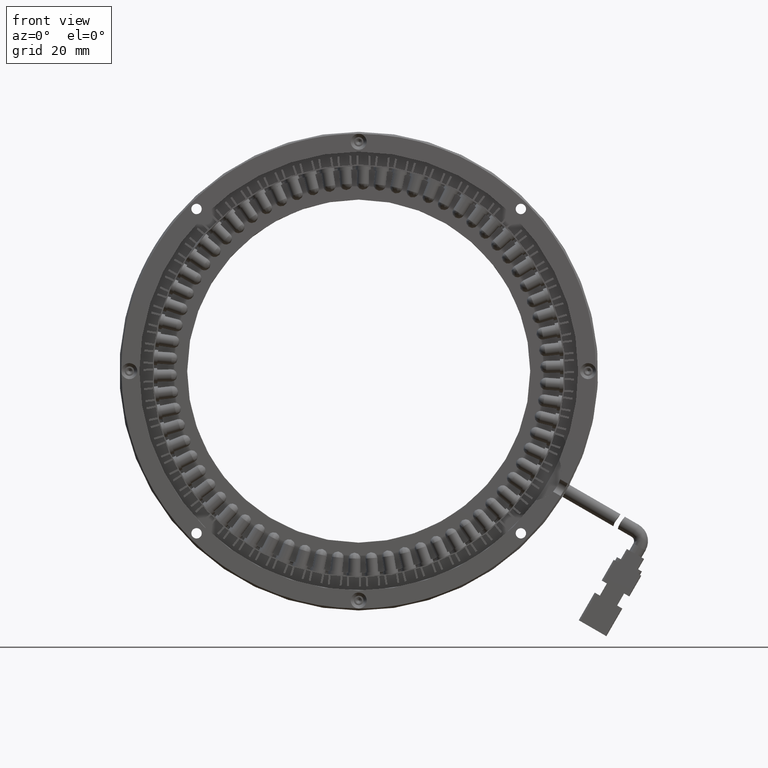
[diagram: clean part render]
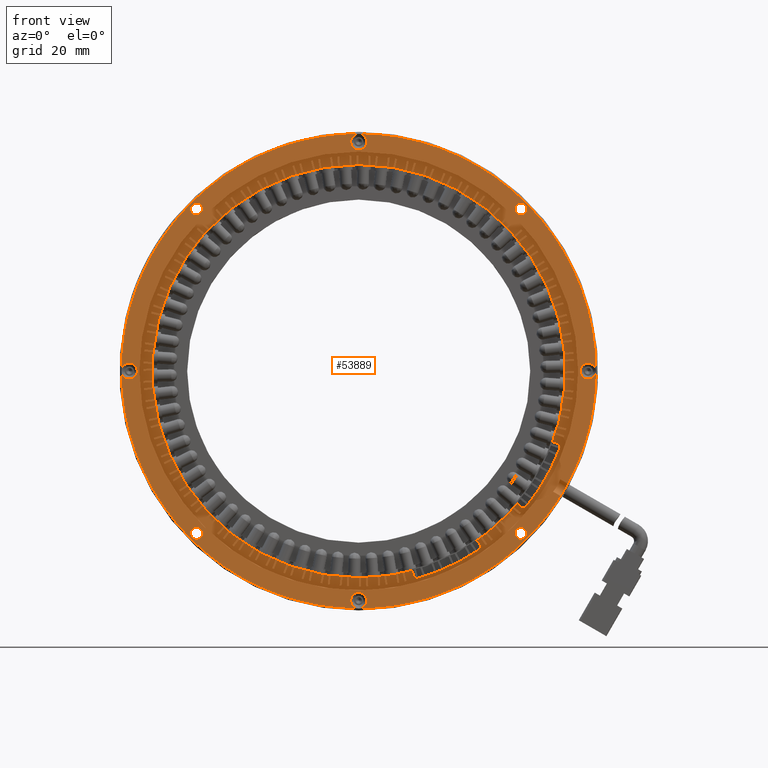
[diagram: same view with one face highlighted and labeled with its STEP entity id]
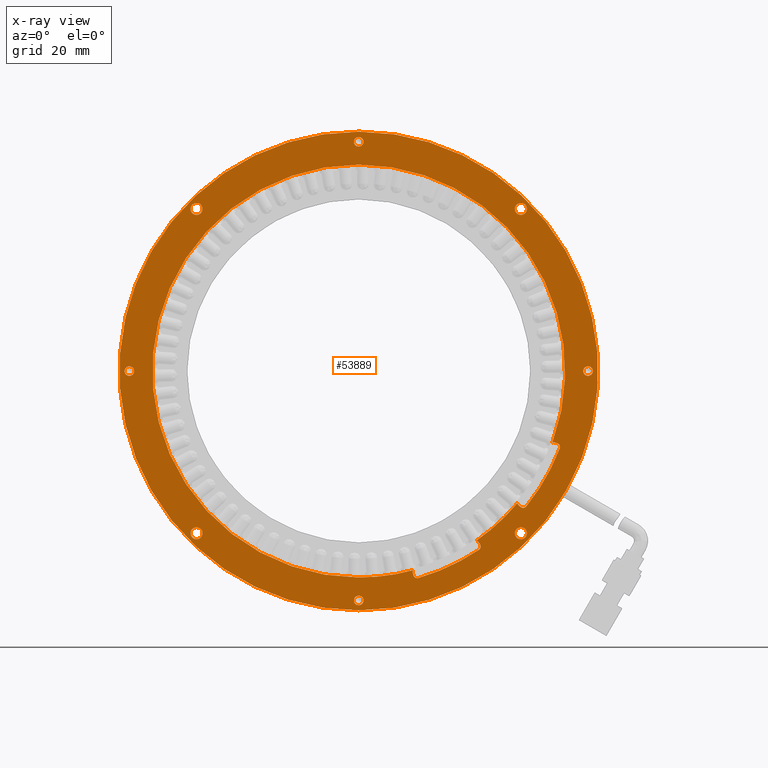
[diagram: x-ray of the same camera — body ghosted, the highlighted face saturated]
A machine part, front view. The second image highlights one B-rep face of the part: STEP entity #53889.
The next image is the same camera in x-ray: the body ghosted, the highlighted face saturated — about 0% of this face is hidden behind the body in this view.
In plain terms, the highlighted planar face has unit normal (0, 1, 0).
Its self-contained STEP definition (entity closure, byte-faithful):
#153 = CIRCLE ( 'NONE', #11416, 53.99999999999999300 ) ;
#928 = ORIENTED_EDGE ( 'NONE', *, *, #55050, .F. ) ;
#1081 = DIRECTION ( 'NONE',  ( -0.0000000000000000000, 1.000000000000000000, 0.0000000000000000000 ) ) ;
#1153 = CARTESIAN_POINT ( 'NONE',  ( 56.45624510954999000, 21.01889671361647400, 51.75000000000000700 ) ) ;
#1335 = AXIS2_PLACEMENT_3D ( 'NONE', #23403, #58045, #28369 ) ;
#1424 = EDGE_LOOP ( 'NONE', ( #60697, #57184 ) ) ;
#1634 = ORIENTED_EDGE ( 'NONE', *, *, #24513, .T. ) ;
#1654 = DIRECTION ( 'NONE',  ( -0.5735764363525099900, 0.0000000000000000000, 0.8191520442879666200 ) ) ;
#1913 = CARTESIAN_POINT ( 'NONE',  ( 113.9562451095000000, 21.01889671361712400, 1.200000000000000000 ) ) ;
#1965 = AXIS2_PLACEMENT_3D ( 'NONE', #13823, #48408, #18815 ) ;
#2033 = EDGE_CURVE ( 'NONE', #52155, #46078, #16184, .T. ) ;
#2111 = DIRECTION ( 'NONE',  ( 0.0000000000000000000, -1.000000000000000000, -0.0000000000000000000 ) ) ;
#2221 = AXIS2_PLACEMENT_3D ( 'NONE', #22442, #57065, #27432 ) ;
#2334 = ORIENTED_EDGE ( 'NONE', *, *, #33780, .T. ) ;
#2728 = AXIS2_PLACEMENT_3D ( 'NONE', #21999, #56592, #26959 ) ;
#3208 = CARTESIAN_POINT ( 'NONE',  ( 105.3451509462000100, 21.01889671361712400, -18.85828428286999900 ) ) ;
#3333 = ORIENTED_EDGE ( 'NONE', *, *, #7551, .F. ) ;
#3336 = ORIENTED_EDGE ( 'NONE', *, *, #21409, .T. ) ;
#3597 = CARTESIAN_POINT ( 'NONE',  ( 56.45624510954999000, 21.01889671361719500, 0.0000000000000000000 ) ) ;
#3816 = AXIS2_PLACEMENT_3D ( 'NONE', #30739, #1081, #35706 ) ;
#3827 = EDGE_CURVE ( 'NONE', #27186, #51906, #46864, .T. ) ;
#4248 = DIRECTION ( 'NONE',  ( 0.0000000000000000000, -1.000000000000000000, -0.0000000000000000000 ) ) ;
#4430 = VERTEX_POINT ( 'NONE', #48455 ) ;
#4439 = VERTEX_POINT ( 'NONE', #37886 ) ;
#4502 = DIRECTION ( 'NONE',  ( -1.387778780781444400E-014, 0.0000000000000000000, 1.000000000000000000 ) ) ;
#4673 = CARTESIAN_POINT ( 'NONE',  ( 56.45624510954999700, 21.01889671361719500, 60.00000000000000000 ) ) ;
#4778 = ORIENTED_EDGE ( 'NONE', *, *, #10831, .F. ) ;
#4900 = DIRECTION ( 'NONE',  ( 0.0000000000000000000, 0.0000000000000000000, 1.000000000000000000 ) ) ;
#4906 = DIRECTION ( 'NONE',  ( 0.0000000000000000000, 0.0000000000000000000, 1.000000000000000000 ) ) ;
#5212 = EDGE_CURVE ( 'NONE', #61771, #41247, #14380, .T. ) ;
#5683 = EDGE_CURVE ( 'NONE', #45473, #46001, #45975, .T. ) ;
#5809 = FACE_OUTER_BOUND ( 'NONE', #1424, .T. ) ;
#5936 = DIRECTION ( 'NONE',  ( -0.0000000000000000000, -1.000000000000000000, -0.0000000000000000000 ) ) ;
#6299 = CIRCLE ( 'NONE', #37055, 1.500000000000015100 ) ;
#6428 = CIRCLE ( 'NONE', #23426, 0.9999999999999940000 ) ;
#6652 = CIRCLE ( 'NONE', #59135, 0.9999999999999870100 ) ;
#6857 = AXIS2_PLACEMENT_3D ( 'NONE', #43291, #13734, #48329 ) ;
#7404 = FACE_BOUND ( 'NONE', #48504, .T. ) ;
#7551 = EDGE_CURVE ( 'NONE', #57176, #62173, #30301, .T. ) ;
#7580 = EDGE_CURVE ( 'NONE', #35582, #21820, #17209, .T. ) ;
#7601 = VECTOR ( 'NONE', #1654, 1000.000000000000100 ) ;
#7711 = EDGE_CURVE ( 'NONE', #12383, #44685, #14853, .T. ) ;
#7734 = LINE ( 'NONE', #29140, #34031 ) ;
#8283 = DIRECTION ( 'NONE',  ( 0.0000000000000000000, 0.0000000000000000000, 1.000000000000000000 ) ) ;
#8471 = AXIS2_PLACEMENT_3D ( 'NONE', #30304, #30224, #30144 ) ;
#8668 = DIRECTION ( 'NONE',  ( 0.0000000000000000000, 0.0000000000000000000, -1.000000000000000000 ) ) ;
#8967 = FACE_BOUND ( 'NONE', #54770, .T. ) ;
#9572 = VERTEX_POINT ( 'NONE', #54570 ) ;
#10310 = CARTESIAN_POINT ( 'NONE',  ( 70.01589320061864900, 21.01889671362000200, -50.60529560871999200 ) ) ;
#10405 = EDGE_CURVE ( 'NONE', #41426, #18902, #34605, .T. ) ;
#10487 = EDGE_CURVE ( 'NONE', #29353, #34558, #48556, .T. ) ;
#10634 = AXIS2_PLACEMENT_3D ( 'NONE', #22583, #57208, #27567 ) ;
#10831 = EDGE_CURVE ( 'NONE', #9572, #28873, #47692, .T. ) ;
#11073 = CARTESIAN_POINT ( 'NONE',  ( 97.11488502777000100, 21.01889671361723400, 40.65863991823000800 ) ) ;
#11250 = EDGE_CURVE ( 'NONE', #18902, #41426, #15938, .T. ) ;
#11345 = CARTESIAN_POINT ( 'NONE',  ( 86.50617681832380900, 21.01889671361712400, -42.91575007264151500 ) ) ;
#11416 = AXIS2_PLACEMENT_3D ( 'NONE', #28105, #62715, #33086 ) ;
#11751 = CIRCLE ( 'NONE', #28453, 53.99999999999999300 ) ;
#12216 = EDGE_LOOP ( 'NONE', ( #14276, #3333 ) ) ;
#12383 = VERTEX_POINT ( 'NONE', #51354 ) ;
#12594 = ORIENTED_EDGE ( 'NONE', *, *, #60888, .T. ) ;
#12956 = EDGE_LOOP ( 'NONE', ( #1634, #56695 ) ) ;
#12985 = CARTESIAN_POINT ( 'NONE',  ( -1.043754890453999700, 21.01889671361712400, -1.200000000000000200 ) ) ;
#13337 = CIRCLE ( 'NONE', #45374, 1.500000000000015100 ) ;
#13451 = CARTESIAN_POINT ( 'NONE',  ( 97.11488502777000100, 21.01889671361723400, 40.65863991823000800 ) ) ;
#13680 = VECTOR ( 'NONE', #24795, 1000.000000000000200 ) ;
#13734 = DIRECTION ( 'NONE',  ( -0.0000000000000000000, 1.000000000000000000, -0.0000000000000000000 ) ) ;
#13823 = CARTESIAN_POINT ( 'NONE',  ( 15.79760519132000100, 21.01889671361723400, -40.65863991823000800 ) ) ;
#14276 = ORIENTED_EDGE ( 'NONE', *, *, #39660, .F. ) ;
#14380 = CIRCLE ( 'NONE', #31374, 1.500000000000001300 ) ;
#14519 = EDGE_LOOP ( 'NONE', ( #928, #52914 ) ) ;
#14708 = EDGE_CURVE ( 'NONE', #58973, #24512, #6652, .T. ) ;
#14853 = CIRCLE ( 'NONE', #37821, 1.000000000000000900 ) ;
#14896 = EDGE_CURVE ( 'NONE', #28873, #9572, #50755, .T. ) ;
#14897 = CARTESIAN_POINT ( 'NONE',  ( 113.9562451095000000, 21.01889671361712400, 0.0000000000000000000 ) ) ;
#15252 = CARTESIAN_POINT ( 'NONE',  ( 98.47019687058852400, 21.01889671361712400, -33.92385381145729200 ) ) ;
#15769 = ORIENTED_EDGE ( 'NONE', *, *, #10487, .T. ) ;
#15938 = CIRCLE ( 'NONE', #2728, 60.00000000000000000 ) ;
#16085 = DIRECTION ( 'NONE',  ( 0.0000000000000000000, 0.0000000000000000000, 1.000000000000000000 ) ) ;
#16184 = CIRCLE ( 'NONE', #19164, 1.199999999999999700 ) ;
#16231 = CARTESIAN_POINT ( 'NONE',  ( 105.6871710895282900, 21.01889671361996300, -17.91859166208542600 ) ) ;
#16267 = ORIENTED_EDGE ( 'NONE', *, *, #29861, .T. ) ;
#16373 = CARTESIAN_POINT ( 'NONE',  ( 56.45624510954999000, 21.01889671361712400, -58.70000000000000300 ) ) ;
#16495 = CARTESIAN_POINT ( 'NONE',  ( 15.79760519132000100, 21.01889671361723400, 42.15863991823000800 ) ) ;
#16978 = CARTESIAN_POINT ( 'NONE',  ( 15.79760519132000100, 21.01889671361723400, -42.15863991823002300 ) ) ;
#17194 = DIRECTION ( 'NONE',  ( 0.0000000000000000000, 0.0000000000000000000, -1.000000000000000000 ) ) ;
#17209 = CIRCLE ( 'NONE', #1335, 1.199999999999598500 ) ;
#17442 = ORIENTED_EDGE ( 'NONE', *, *, #37554, .F. ) ;
#17494 = CIRCLE ( 'NONE', #10634, 1.199999999999999700 ) ;
#17641 = DIRECTION ( 'NONE',  ( -0.0000000000000000000, 1.000000000000000000, 0.0000000000000000000 ) ) ;
#18056 = CARTESIAN_POINT ( 'NONE',  ( -5.986352945838000900, 21.01889671362000200, -62.40000000000000600 ) ) ;
#18279 = VERTEX_POINT ( 'NONE', #61038 ) ;
#18446 = DIRECTION ( 'NONE',  ( 0.0000000000000000000, 0.0000000000000000000, 1.000000000000000000 ) ) ;
#18483 = DIRECTION ( 'NONE',  ( 0.0000000000000000000, 1.000000000000000000, 0.0000000000000000000 ) ) ;
#18565 = EDGE_CURVE ( 'NONE', #4430, #12383, #7734, .T. ) ;
#18602 = CARTESIAN_POINT ( 'NONE',  ( -1.043754890453999700, 21.01889671361712400, -4.014800644713822900E-013 ) ) ;
#18815 = DIRECTION ( 'NONE',  ( 0.0000000000000000000, 0.0000000000000000000, 1.000000000000000000 ) ) ;
#18902 = VERTEX_POINT ( 'NONE', #4673 ) ;
#19081 = FACE_BOUND ( 'NONE', #43929, .T. ) ;
#19164 = AXIS2_PLACEMENT_3D ( 'NONE', #25045, #24968, #17194 ) ;
#19171 = CARTESIAN_POINT ( 'NONE',  ( 71.41413640679510900, 21.01889671361712400, -51.88700692793715800 ) ) ;
#19521 = DIRECTION ( 'NONE',  ( 0.0000000000000000000, -1.000000000000000000, -0.0000000000000000000 ) ) ;
#19906 = DIRECTION ( 'NONE',  ( 0.0000000000000000000, 0.0000000000000000000, -1.000000000000000000 ) ) ;
#20225 = CARTESIAN_POINT ( 'NONE',  ( 56.45624510954999000, 21.01889671361647400, 0.0000000000000000000 ) ) ;
#20600 = EDGE_CURVE ( 'NONE', #61189, #55900, #6299, .T. ) ;
#20640 = ORIENTED_EDGE ( 'NONE', *, *, #25544, .F. ) ;
#20671 = CARTESIAN_POINT ( 'NONE',  ( 113.9562451095000000, 21.01889671361712400, 0.0000000000000000000 ) ) ;
#20677 = EDGE_CURVE ( 'NONE', #34558, #43587, #38011, .T. ) ;
#20834 = LINE ( 'NONE', #61012, #7601 ) ;
#20840 = AXIS2_PLACEMENT_3D ( 'NONE', #3208, #37873, #8283 ) ;
#20906 = CARTESIAN_POINT ( 'NONE',  ( 106.2510881973222600, 21.01889671362000200, -18.12384070391999900 ) ) ;
#21109 = CARTESIAN_POINT ( 'NONE',  ( 70.07451705029224300, 21.01889671361679700, -49.92599692893465100 ) ) ;
#21118 = DIRECTION ( 'NONE',  ( -0.0000000000000000000, 1.000000000000000000, 0.0000000000000000000 ) ) ;
#21409 = EDGE_CURVE ( 'NONE', #44685, #27186, #11751, .T. ) ;
#21820 = VERTEX_POINT ( 'NONE', #12985 ) ;
#21999 = CARTESIAN_POINT ( 'NONE',  ( 56.45624510954999000, 21.01889671361719500, 0.0000000000000000000 ) ) ;
#22435 = CARTESIAN_POINT ( 'NONE',  ( 56.45624510954999700, 21.01889671361647400, -51.75000000000000700 ) ) ;
#22442 = CARTESIAN_POINT ( 'NONE',  ( 56.45624510954999000, 21.01889671361712400, 57.50000000000000000 ) ) ;
#22583 = CARTESIAN_POINT ( 'NONE',  ( 56.45624510954999000, 21.01889671361712400, -57.50000000000000000 ) ) ;
#22718 = CARTESIAN_POINT ( 'NONE',  ( 85.94812115529238400, 21.01889671361679700, -42.52401377225068300 ) ) ;
#22972 = DIRECTION ( 'NONE',  ( 0.0000000000000000000, 0.0000000000000000000, 1.000000000000000000 ) ) ;
#23386 = ORIENTED_EDGE ( 'NONE', *, *, #34068, .T. ) ;
#23403 = CARTESIAN_POINT ( 'NONE',  ( -1.043754890453999700, 21.01889671361712400, -4.014800644713822900E-013 ) ) ;
#23426 = AXIS2_PLACEMENT_3D ( 'NONE', #24060, #58734, #29042 ) ;
#23504 = DIRECTION ( 'NONE',  ( 0.0000000000000000000, 0.0000000000000000000, -1.000000000000000000 ) ) ;
#23582 = CIRCLE ( 'NONE', #32462, 51.75000000000000700 ) ;
#23747 = EDGE_CURVE ( 'NONE', #18279, #28284, #48930, .T. ) ;
#24060 = CARTESIAN_POINT ( 'NONE',  ( 71.13713841981999100, 21.01889671361712400, -50.92613642926999500 ) ) ;
#24180 = AXIS2_PLACEMENT_3D ( 'NONE', #28911, #63512, #33887 ) ;
#24399 = DIRECTION ( 'NONE',  ( 0.0000000000000000000, -1.000000000000000000, -0.0000000000000000000 ) ) ;
#24512 = VERTEX_POINT ( 'NONE', #28254 ) ;
#24513 = EDGE_CURVE ( 'NONE', #21820, #35582, #55441, .T. ) ;
#24524 = AXIS2_PLACEMENT_3D ( 'NONE', #14897, #49477, #19906 ) ;
#24795 = DIRECTION ( 'NONE',  ( 0.2588190451092419200, 0.0000000000000000000, -0.9659258262872673100 ) ) ;
#24952 = CIRCLE ( 'NONE', #24180, 1.000000000000000900 ) ;
#24968 = DIRECTION ( 'NONE',  ( 0.0000000000000000000, -1.000000000000000000, 0.0000000000000000000 ) ) ;
#25045 = CARTESIAN_POINT ( 'NONE',  ( 56.45624510954999000, 21.01889671361712400, -57.50000000000000000 ) ) ;
#25080 = EDGE_CURVE ( 'NONE', #4439, #31491, #6428, .T. ) ;
#25108 = DIRECTION ( 'NONE',  ( -9.385943444898664700E-016, 0.0000000000000000000, 1.000000000000000000 ) ) ;
#25267 = CARTESIAN_POINT ( 'NONE',  ( 106.8421401850278200, 21.01889671361712400, -19.42322263271341500 ) ) ;
#25544 = EDGE_CURVE ( 'NONE', #41247, #61771, #32636, .T. ) ;
#25552 = DIRECTION ( 'NONE',  ( 0.0000000000000000000, 0.0000000000000000000, -1.000000000000000000 ) ) ;
#25748 = DIRECTION ( 'NONE',  ( -0.0000000000000000000, 1.000000000000000000, 0.0000000000000000000 ) ) ;
#25783 = CIRCLE ( 'NONE', #54470, 1.000000000000000900 ) ;
#25807 = DIRECTION ( 'NONE',  ( -0.9396926207839257900, 0.0000000000000000000, 0.3420201433311156900 ) ) ;
#26281 = ORIENTED_EDGE ( 'NONE', *, *, #25080, .T. ) ;
#26587 = CARTESIAN_POINT ( 'NONE',  ( 15.79760519132000100, 21.01889671361723400, 39.15863991823000800 ) ) ;
#26959 = DIRECTION ( 'NONE',  ( 0.0000000000000000000, 0.0000000000000000000, -1.000000000000000000 ) ) ;
#27186 = VERTEX_POINT ( 'NONE', #25267 ) ;
#27403 = ORIENTED_EDGE ( 'NONE', *, *, #30089, .T. ) ;
#27432 = DIRECTION ( 'NONE',  ( 0.0000000000000000000, 0.0000000000000000000, -1.000000000000000000 ) ) ;
#27567 = DIRECTION ( 'NONE',  ( 0.0000000000000000000, 0.0000000000000000000, -1.000000000000000000 ) ) ;
#27649 = CIRCLE ( 'NONE', #1965, 1.500000000000015100 ) ;
#28105 = CARTESIAN_POINT ( 'NONE',  ( 56.45624510954999000, 21.01889671361712400, 0.0000000000000000000 ) ) ;
#28254 = CARTESIAN_POINT ( 'NONE',  ( 86.85038465601374500, 21.01889671361712400, -43.40732980994152300 ) ) ;
#28284 = VERTEX_POINT ( 'NONE', #1913 ) ;
#28369 = DIRECTION ( 'NONE',  ( 0.0000000000000000000, 0.0000000000000000000, -1.000000000000000000 ) ) ;
#28453 = AXIS2_PLACEMENT_3D ( 'NONE', #35580, #5936, #40561 ) ;
#28477 = ORIENTED_EDGE ( 'NONE', *, *, #50566, .F. ) ;
#28638 = AXIS2_PLACEMENT_3D ( 'NONE', #18056, #52633, #22972 ) ;
#28873 = VERTEX_POINT ( 'NONE', #41636 ) ;
#28911 = CARTESIAN_POINT ( 'NONE',  ( 70.98181902692999800, 21.01889671361712400, -50.34647656362000100 ) ) ;
#29042 = DIRECTION ( 'NONE',  ( 1.387778780781454000E-014, 0.0000000000000000000, 1.000000000000000000 ) ) ;
#29140 = CARTESIAN_POINT ( 'NONE',  ( 96.58966367892394100, 21.01889671362000200, -33.67593671947000200 ) ) ;
#29187 = AXIS2_PLACEMENT_3D ( 'NONE', #33944, #4248, #38930 ) ;
#29204 = DIRECTION ( 'NONE',  ( 0.0000000000000000000, 1.000000000000000000, 0.0000000000000000000 ) ) ;
#29353 = VERTEX_POINT ( 'NONE', #11345 ) ;
#29500 = ORIENTED_EDGE ( 'NONE', *, *, #20677, .T. ) ;
#29698 = AXIS2_PLACEMENT_3D ( 'NONE', #13451, #48052, #18446 ) ;
#29861 = EDGE_CURVE ( 'NONE', #42219, #32616, #23582, .T. ) ;
#30015 = VERTEX_POINT ( 'NONE', #16495 ) ;
#30089 = EDGE_CURVE ( 'NONE', #62178, #40514, #32039, .T. ) ;
#30144 = DIRECTION ( 'NONE',  ( 0.0000000000000000000, 0.0000000000000000000, 1.000000000000000000 ) ) ;
#30224 = DIRECTION ( 'NONE',  ( 0.0000000000000000000, -1.000000000000000000, -0.0000000000000000000 ) ) ;
#30301 = CIRCLE ( 'NONE', #52386, 1.500000000000015100 ) ;
#30304 = CARTESIAN_POINT ( 'NONE',  ( 105.9090680539999700, 21.01889671361712400, -19.06353332470000000 ) ) ;
#30739 = CARTESIAN_POINT ( 'NONE',  ( 15.79760519132000100, 21.01889671361723400, 40.65863991823000800 ) ) ;
#31374 = AXIS2_PLACEMENT_3D ( 'NONE', #11073, #45707, #16085 ) ;
#31437 = CARTESIAN_POINT ( 'NONE',  ( -1.043754890453999500, 21.01889671361712400, 1.199999999999197000 ) ) ;
#31445 = EDGE_LOOP ( 'NONE', ( #4778, #50429 ) ) ;
#31491 = VERTEX_POINT ( 'NONE', #19171 ) ;
#31757 = CARTESIAN_POINT ( 'NONE',  ( 56.45624510954999000, 21.01889671361647400, 0.0000000000000000000 ) ) ;
#32039 = CIRCLE ( 'NONE', #57787, 51.75000000000000700 ) ;
#32156 = FACE_BOUND ( 'NONE', #34562, .T. ) ;
#32462 = AXIS2_PLACEMENT_3D ( 'NONE', #20225, #54767, #25108 ) ;
#32616 = VERTEX_POINT ( 'NONE', #1153 ) ;
#32636 = CIRCLE ( 'NONE', #29698, 1.500000000000001300 ) ;
#32666 = CARTESIAN_POINT ( 'NONE',  ( 86.58925124384661800, 21.01889671361712400, -44.81073466603146500 ) ) ;
#33086 = DIRECTION ( 'NONE',  ( 0.0000000000000000000, 0.0000000000000000000, 1.000000000000000000 ) ) ;
#33670 = AXIS2_PLACEMENT_3D ( 'NONE', #20671, #55214, #25552 ) ;
#33696 = FACE_BOUND ( 'NONE', #12956, .T. ) ;
#33780 = EDGE_CURVE ( 'NONE', #61217, #4439, #51608, .T. ) ;
#33887 = DIRECTION ( 'NONE',  ( 0.0000000000000000000, 0.0000000000000000000, 1.000000000000000000 ) ) ;
#33944 = CARTESIAN_POINT ( 'NONE',  ( 85.68702477404001200, 21.01889671361712400, -43.48932650898999000 ) ) ;
#34031 = VECTOR ( 'NONE', #63754, 1000.000000000000200 ) ;
#34068 = EDGE_CURVE ( 'NONE', #46078, #52155, #17494, .T. ) ;
#34209 = DIRECTION ( 'NONE',  ( 0.0000000000000000000, -1.000000000000000000, -0.0000000000000000000 ) ) ;
#34558 = VERTEX_POINT ( 'NONE', #22718 ) ;
#34562 = EDGE_LOOP ( 'NONE', ( #20640, #60887 ) ) ;
#34585 = DIRECTION ( 'NONE',  ( 0.0000000000000000000, -1.000000000000000000, -0.0000000000000000000 ) ) ;
#34590 = DIRECTION ( 'NONE',  ( 0.0000000000000000000, -1.000000000000000000, -0.0000000000000000000 ) ) ;
#34605 = CIRCLE ( 'NONE', #53692, 60.00000000000000000 ) ;
#35187 = AXIS2_PLACEMENT_3D ( 'NONE', #49095, #19521, #54089 ) ;
#35580 = CARTESIAN_POINT ( 'NONE',  ( 56.45624510954999000, 21.01889671361712400, 0.0000000000000000000 ) ) ;
#35582 = VERTEX_POINT ( 'NONE', #31437 ) ;
#35706 = DIRECTION ( 'NONE',  ( 0.0000000000000000000, 0.0000000000000000000, 1.000000000000000000 ) ) ;
#35980 = VECTOR ( 'NONE', #25807, 1000.000000000000100 ) ;
#36233 = AXIS2_PLACEMENT_3D ( 'NONE', #18602, #53190, #23504 ) ;
#36733 = DIRECTION ( 'NONE',  ( 0.0000000000000000000, 0.0000000000000000000, 1.000000000000000000 ) ) ;
#37055 = AXIS2_PLACEMENT_3D ( 'NONE', #58899, #29204, #63809 ) ;
#37319 = CARTESIAN_POINT ( 'NONE',  ( 15.79760519132000100, 21.01889671361723400, -39.15863991822999400 ) ) ;
#37554 = EDGE_CURVE ( 'NONE', #30015, #60568, #62253, .T. ) ;
#37821 = AXIS2_PLACEMENT_3D ( 'NONE', #63846, #34209, #4502 ) ;
#37840 = EDGE_CURVE ( 'NONE', #31491, #58973, #153, .T. ) ;
#37873 = DIRECTION ( 'NONE',  ( 0.0000000000000000000, -1.000000000000000000, -0.0000000000000000000 ) ) ;
#37886 = CARTESIAN_POINT ( 'NONE',  ( 70.17121259352165900, 21.01889671361712400, -51.18495547437836300 ) ) ;
#38011 = CIRCLE ( 'NONE', #56984, 51.75000000000000700 ) ;
#38271 = DIRECTION ( 'NONE',  ( -0.0000000000000000000, 1.000000000000000000, -0.0000000000000000000 ) ) ;
#38930 = DIRECTION ( 'NONE',  ( 1.387778780781454000E-014, 0.0000000000000000000, 1.000000000000000000 ) ) ;
#39356 = EDGE_CURVE ( 'NONE', #24512, #29353, #20834, .T. ) ;
#39390 = AXIS2_PLACEMENT_3D ( 'NONE', #64236, #34585, #4900 ) ;
#39660 = EDGE_CURVE ( 'NONE', #62173, #57176, #27649, .T. ) ;
#40454 = CARTESIAN_POINT ( 'NONE',  ( 56.45624510954999000, 21.01889671361719500, -60.00000000000000000 ) ) ;
#40514 = VERTEX_POINT ( 'NONE', #21109 ) ;
#40561 = DIRECTION ( 'NONE',  ( 2.698458740408366800E-015, 0.0000000000000000000, 1.000000000000000000 ) ) ;
#40806 = CARTESIAN_POINT ( 'NONE',  ( 97.11488502777000100, 21.01889671361723400, -39.15863991822999400 ) ) ;
#41203 = CARTESIAN_POINT ( 'NONE',  ( 96.24805580926177100, 21.01889671361679700, -33.08586255847507800 ) ) ;
#41204 = CIRCLE ( 'NONE', #45238, 1.500000000000001300 ) ;
#41247 = VERTEX_POINT ( 'NONE', #54140 ) ;
#41426 = VERTEX_POINT ( 'NONE', #40454 ) ;
#41558 = CARTESIAN_POINT ( 'NONE',  ( 56.45624510954999000, 21.01889671361712400, -56.30000000000000400 ) ) ;
#41636 = CARTESIAN_POINT ( 'NONE',  ( 56.45624510954999000, 21.01889671361712400, 58.70000000000001700 ) ) ;
#41763 = ORIENTED_EDGE ( 'NONE', *, *, #49518, .T. ) ;
#41960 = CIRCLE ( 'NONE', #20840, 0.9999999999999940000 ) ;
#42219 = VERTEX_POINT ( 'NONE', #52495 ) ;
#43291 = CARTESIAN_POINT ( 'NONE',  ( 56.45624510954999000, 21.01889671361712400, 57.50000000000000000 ) ) ;
#43587 = VERTEX_POINT ( 'NONE', #41203 ) ;
#43672 = CARTESIAN_POINT ( 'NONE',  ( 97.11488502777000100, 21.01889671361723400, 39.15863991823000800 ) ) ;
#43929 = EDGE_LOOP ( 'NONE', ( #60151, #63640, #50047, #15769, #29500, #47977, #47037, #49252, #3336, #46342, #41763, #56808, #53689, #16267, #46836, #27403, #28477, #2334, #26281 ) ) ;
#44509 = ORIENTED_EDGE ( 'NONE', *, *, #47541, .F. ) ;
#44685 = VERTEX_POINT ( 'NONE', #15252 ) ;
#45238 = AXIS2_PLACEMENT_3D ( 'NONE', #47259, #17641, #52241 ) ;
#45351 = FACE_BOUND ( 'NONE', #47823, .T. ) ;
#45374 = AXIS2_PLACEMENT_3D ( 'NONE', #48090, #18483, #53067 ) ;
#45473 = VERTEX_POINT ( 'NONE', #16231 ) ;
#45707 = DIRECTION ( 'NONE',  ( 0.0000000000000000000, 1.000000000000000000, 0.0000000000000000000 ) ) ;
#45975 = CIRCLE ( 'NONE', #35187, 0.9999999999999940000 ) ;
#46001 = VERTEX_POINT ( 'NONE', #60710 ) ;
#46078 = VERTEX_POINT ( 'NONE', #16373 ) ;
#46342 = ORIENTED_EDGE ( 'NONE', *, *, #3827, .T. ) ;
#46836 = ORIENTED_EDGE ( 'NONE', *, *, #60407, .T. ) ;
#46864 = CIRCLE ( 'NONE', #8471, 1.000000000000000900 ) ;
#46919 = FACE_BOUND ( 'NONE', #31445, .T. ) ;
#47037 = ORIENTED_EDGE ( 'NONE', *, *, #18565, .T. ) ;
#47259 = CARTESIAN_POINT ( 'NONE',  ( 15.79760519132000100, 21.01889671361723400, 40.65863991823000800 ) ) ;
#47461 = ORIENTED_EDGE ( 'NONE', *, *, #2033, .T. ) ;
#47541 = EDGE_CURVE ( 'NONE', #60568, #30015, #41204, .T. ) ;
#47569 = EDGE_CURVE ( 'NONE', #46001, #42219, #41960, .T. ) ;
#47692 = CIRCLE ( 'NONE', #2221, 1.200000000000013500 ) ;
#47705 = CARTESIAN_POINT ( 'NONE',  ( 70.01589320062980400, 21.01889671361712400, -50.60529560872557700 ) ) ;
#47823 = EDGE_LOOP ( 'NONE', ( #17442, #44509 ) ) ;
#47977 = ORIENTED_EDGE ( 'NONE', *, *, #54749, .F. ) ;
#48052 = DIRECTION ( 'NONE',  ( 0.0000000000000000000, 1.000000000000000000, 0.0000000000000000000 ) ) ;
#48090 = CARTESIAN_POINT ( 'NONE',  ( 97.11488502777000100, 21.01889671361723400, -40.65863991823000800 ) ) ;
#48329 = DIRECTION ( 'NONE',  ( 0.0000000000000000000, 0.0000000000000000000, -1.000000000000000000 ) ) ;
#48408 = DIRECTION ( 'NONE',  ( -0.0000000000000000000, 1.000000000000000000, 0.0000000000000000000 ) ) ;
#48455 = CARTESIAN_POINT ( 'NONE',  ( 96.58966367894359500, 21.01889671361712400, -33.67593671947526000 ) ) ;
#48504 = EDGE_LOOP ( 'NONE', ( #58197, #12594 ) ) ;
#48556 = CIRCLE ( 'NONE', #29187, 0.9999999999999940000 ) ;
#48930 = CIRCLE ( 'NONE', #33670, 1.200000000000000000 ) ;
#49095 = CARTESIAN_POINT ( 'NONE',  ( 105.3451509462000100, 21.01889671361712400, -18.85828428286999900 ) ) ;
#49169 = LINE ( 'NONE', #20906, #35980 ) ;
#49252 = ORIENTED_EDGE ( 'NONE', *, *, #7711, .T. ) ;
#49477 = DIRECTION ( 'NONE',  ( 0.0000000000000000000, -1.000000000000000000, 0.0000000000000000000 ) ) ;
#49518 = EDGE_CURVE ( 'NONE', #51906, #45473, #49169, .T. ) ;
#50047 = ORIENTED_EDGE ( 'NONE', *, *, #39356, .T. ) ;
#50429 = ORIENTED_EDGE ( 'NONE', *, *, #14896, .F. ) ;
#50566 = EDGE_CURVE ( 'NONE', #61217, #40514, #24952, .T. ) ;
#50721 = CARTESIAN_POINT ( 'NONE',  ( 97.23245128862998900, 21.01889671361712400, -32.90989227635000700 ) ) ;
#50755 = CIRCLE ( 'NONE', #6857, 1.200000000000013500 ) ;
#51354 = CARTESIAN_POINT ( 'NONE',  ( 97.04937311718184400, 21.01889671361712400, -34.06167873954634500 ) ) ;
#51608 = LINE ( 'NONE', #10310, #13680 ) ;
#51906 = VERTEX_POINT ( 'NONE', #58759 ) ;
#52051 = CARTESIAN_POINT ( 'NONE',  ( 97.11488502777000100, 21.01889671361723400, -42.15863991823002300 ) ) ;
#52155 = VERTEX_POINT ( 'NONE', #41558 ) ;
#52241 = DIRECTION ( 'NONE',  ( 0.0000000000000000000, 0.0000000000000000000, 1.000000000000000000 ) ) ;
#52386 = AXIS2_PLACEMENT_3D ( 'NONE', #55408, #25748, #60409 ) ;
#52495 = CARTESIAN_POINT ( 'NONE',  ( 105.0053479411685400, 21.01889671361679700, -17.91778764928664500 ) ) ;
#52622 = CIRCLE ( 'NONE', #24524, 1.200000000000000000 ) ;
#52633 = DIRECTION ( 'NONE',  ( 0.0000000000000000000, 1.000000000000000000, 0.0000000000000000000 ) ) ;
#52914 = ORIENTED_EDGE ( 'NONE', *, *, #20600, .F. ) ;
#53067 = DIRECTION ( 'NONE',  ( 0.0000000000000000000, 0.0000000000000000000, 1.000000000000000000 ) ) ;
#53190 = DIRECTION ( 'NONE',  ( 0.0000000000000000000, -1.000000000000000000, 0.0000000000000000000 ) ) ;
#53689 = ORIENTED_EDGE ( 'NONE', *, *, #47569, .T. ) ;
#53692 = AXIS2_PLACEMENT_3D ( 'NONE', #3597, #38271, #8668 ) ;
#53889 = ADVANCED_FACE ( 'NONE', ( #7404, #46919, #33696, #8967, #58523, #60099, #45351, #32156, #19081, #5809 ), #57381, .T. ) ;
#54074 = CARTESIAN_POINT ( 'NONE',  ( 86.03123261172997600, 21.01889671361712400, -43.98090624628999700 ) ) ;
#54089 = DIRECTION ( 'NONE',  ( -8.326672684688724500E-014, 0.0000000000000000000, 1.000000000000000000 ) ) ;
#54140 = CARTESIAN_POINT ( 'NONE',  ( 97.11488502777000100, 21.01889671361723400, 42.15863991823000800 ) ) ;
#54470 = AXIS2_PLACEMENT_3D ( 'NONE', #50721, #21118, #55682 ) ;
#54570 = CARTESIAN_POINT ( 'NONE',  ( 56.45624510954999000, 21.01889671361712400, 56.29999999999999000 ) ) ;
#54749 = EDGE_CURVE ( 'NONE', #4430, #43587, #25783, .T. ) ;
#54767 = DIRECTION ( 'NONE',  ( 0.0000000000000000000, -1.000000000000000000, -0.0000000000000000000 ) ) ;
#54770 = EDGE_LOOP ( 'NONE', ( #23386, #47461 ) ) ;
#55050 = EDGE_CURVE ( 'NONE', #55900, #61189, #13337, .T. ) ;
#55214 = DIRECTION ( 'NONE',  ( 0.0000000000000000000, -1.000000000000000000, 0.0000000000000000000 ) ) ;
#55408 = CARTESIAN_POINT ( 'NONE',  ( 15.79760519132000100, 21.01889671361723400, -40.65863991823000800 ) ) ;
#55441 = CIRCLE ( 'NONE', #36233, 1.199999999999598500 ) ;
#55682 = DIRECTION ( 'NONE',  ( 0.0000000000000000000, 0.0000000000000000000, 1.000000000000000000 ) ) ;
#55900 = VERTEX_POINT ( 'NONE', #40806 ) ;
#56592 = DIRECTION ( 'NONE',  ( -0.0000000000000000000, 1.000000000000000000, -0.0000000000000000000 ) ) ;
#56640 = CIRCLE ( 'NONE', #39390, 51.75000000000000700 ) ;
#56695 = ORIENTED_EDGE ( 'NONE', *, *, #7580, .T. ) ;
#56808 = ORIENTED_EDGE ( 'NONE', *, *, #5683, .T. ) ;
#56984 = AXIS2_PLACEMENT_3D ( 'NONE', #64238, #34590, #4906 ) ;
#57065 = DIRECTION ( 'NONE',  ( -0.0000000000000000000, 1.000000000000000000, -0.0000000000000000000 ) ) ;
#57176 = VERTEX_POINT ( 'NONE', #16978 ) ;
#57184 = ORIENTED_EDGE ( 'NONE', *, *, #11250, .T. ) ;
#57208 = DIRECTION ( 'NONE',  ( 0.0000000000000000000, -1.000000000000000000, 0.0000000000000000000 ) ) ;
#57381 = PLANE ( 'NONE',  #28638 ) ;
#57787 = AXIS2_PLACEMENT_3D ( 'NONE', #31757, #2111, #36733 ) ;
#58045 = DIRECTION ( 'NONE',  ( 0.0000000000000000000, -1.000000000000000000, 0.0000000000000000000 ) ) ;
#58197 = ORIENTED_EDGE ( 'NONE', *, *, #23747, .T. ) ;
#58523 = FACE_BOUND ( 'NONE', #14519, .T. ) ;
#58734 = DIRECTION ( 'NONE',  ( 0.0000000000000000000, -1.000000000000000000, -0.0000000000000000000 ) ) ;
#58759 = CARTESIAN_POINT ( 'NONE',  ( 106.2510881973325600, 21.01889671361712400, -18.12384070392067100 ) ) ;
#58899 = CARTESIAN_POINT ( 'NONE',  ( 97.11488502777000100, 21.01889671361723400, -40.65863991823000800 ) ) ;
#58973 = VERTEX_POINT ( 'NONE', #32666 ) ;
#59081 = DIRECTION ( 'NONE',  ( -1.387778780781463700E-014, 0.0000000000000000000, 1.000000000000000000 ) ) ;
#59135 = AXIS2_PLACEMENT_3D ( 'NONE', #54074, #24399, #59081 ) ;
#60099 = FACE_BOUND ( 'NONE', #12216, .T. ) ;
#60151 = ORIENTED_EDGE ( 'NONE', *, *, #37840, .T. ) ;
#60407 = EDGE_CURVE ( 'NONE', #32616, #62178, #56640, .T. ) ;
#60409 = DIRECTION ( 'NONE',  ( 0.0000000000000000000, 0.0000000000000000000, 1.000000000000000000 ) ) ;
#60568 = VERTEX_POINT ( 'NONE', #26587 ) ;
#60697 = ORIENTED_EDGE ( 'NONE', *, *, #10405, .T. ) ;
#60710 = CARTESIAN_POINT ( 'NONE',  ( 105.3451509462000100, 21.01889671361712400, -17.85828428287000200 ) ) ;
#60887 = ORIENTED_EDGE ( 'NONE', *, *, #5212, .F. ) ;
#60888 = EDGE_CURVE ( 'NONE', #28284, #18279, #52622, .T. ) ;
#61012 = CARTESIAN_POINT ( 'NONE',  ( 86.85038465600565900, 21.01889671362000200, -43.40732980994000200 ) ) ;
#61038 = CARTESIAN_POINT ( 'NONE',  ( 113.9562451095000000, 21.01889671361712400, -1.200000000000000000 ) ) ;
#61189 = VERTEX_POINT ( 'NONE', #52051 ) ;
#61217 = VERTEX_POINT ( 'NONE', #47705 ) ;
#61771 = VERTEX_POINT ( 'NONE', #43672 ) ;
#62173 = VERTEX_POINT ( 'NONE', #37319 ) ;
#62178 = VERTEX_POINT ( 'NONE', #22435 ) ;
#62253 = CIRCLE ( 'NONE', #3816, 1.500000000000001300 ) ;
#62715 = DIRECTION ( 'NONE',  ( -0.0000000000000000000, -1.000000000000000000, -0.0000000000000000000 ) ) ;
#63512 = DIRECTION ( 'NONE',  ( -0.0000000000000000000, 1.000000000000000000, 0.0000000000000000000 ) ) ;
#63640 = ORIENTED_EDGE ( 'NONE', *, *, #14708, .T. ) ;
#63754 = DIRECTION ( 'NONE',  ( 0.7660444431237696300, 0.0000000000000000000, -0.6427876096808288200 ) ) ;
#63809 = DIRECTION ( 'NONE',  ( 0.0000000000000000000, 0.0000000000000000000, 1.000000000000000000 ) ) ;
#63846 = CARTESIAN_POINT ( 'NONE',  ( 97.69216072687002800, 21.01889671361712400, -33.29563429641999800 ) ) ;
#64236 = CARTESIAN_POINT ( 'NONE',  ( 56.45624510954999000, 21.01889671361647400, 0.0000000000000000000 ) ) ;
#64238 = CARTESIAN_POINT ( 'NONE',  ( 56.45624510954999000, 21.01889671361647400, 0.0000000000000000000 ) ) ;